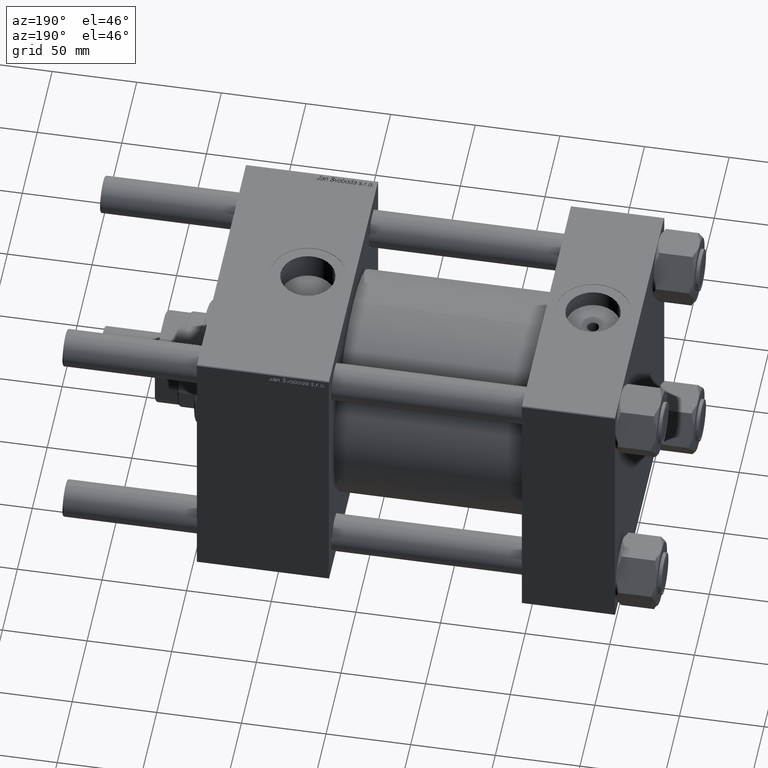
[diagram: clean part render]
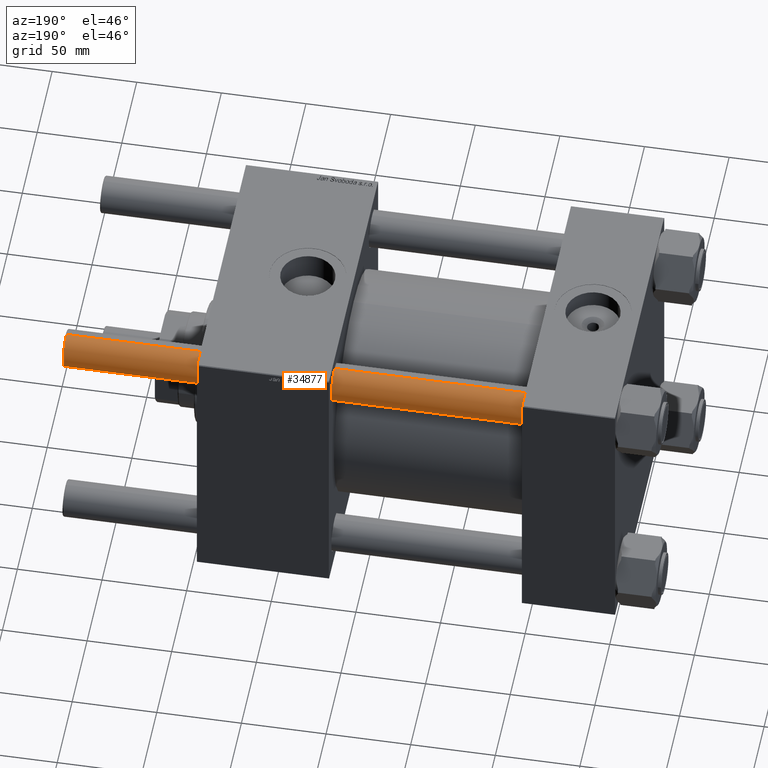
[diagram: same view with one face highlighted and labeled with its STEP entity id]
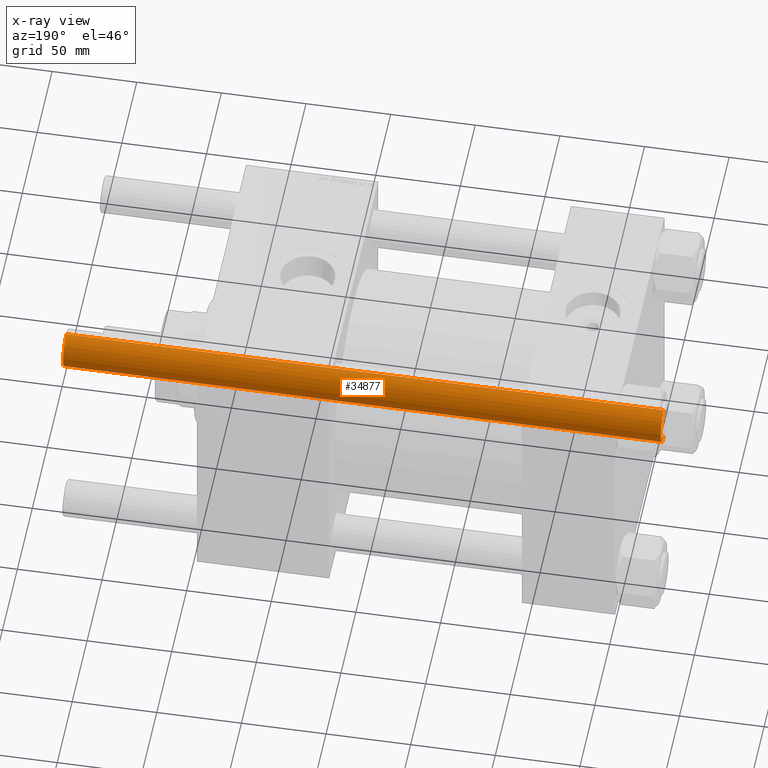
[diagram: x-ray of the same camera — body ghosted, the highlighted face saturated]
A machine part, auxiliary view. The second image highlights one B-rep face of the part: STEP entity #34877.
The next image is the same camera in x-ray: the body ghosted, the highlighted face saturated — about 0% of this face is hidden behind the body in this view.
In plain terms, the highlighted cylindrical surface (edge-blend (fillet) strip) has radius 11 mm, axis along (1, -0, -0).
Its self-contained STEP definition (entity closure, byte-faithful):
#1262 = EDGE_LOOP ( 'NONE', ( #8931, #30542, #47330, #18659 ) ) ;
#1440 = CARTESIAN_POINT ( 'NONE',  ( 11.00000000000000000, 1.347111479062088405E-15, 353.5000000000000568 ) ) ;
#1538 = EDGE_CURVE ( 'NONE', #35558, #39195, #49781, .T. ) ;
#3303 = CARTESIAN_POINT ( 'NONE',  ( -11.00000000000000000, 0.000000000000000000, 353.5000000000000568 ) ) ;
#3781 = EDGE_CURVE ( 'NONE', #35558, #21352, #54818, .T. ) ;
#6143 = CARTESIAN_POINT ( 'NONE',  ( 0.000000000000000000, 0.000000000000000000, 354.0000000000000000 ) ) ;
#6706 = CYLINDRICAL_SURFACE ( 'NONE', #44171, 11.00000000000000000 ) ;
#8931 = ORIENTED_EDGE ( 'NONE', *, *, #1538, .T. ) ;
#11189 = LINE ( 'NONE', #38071, #16212 ) ;
#11933 = DIRECTION ( 'NONE',  ( -0.000000000000000000, -0.000000000000000000, -1.000000000000000000 ) ) ;
#12867 = VECTOR ( 'NONE', #16888, 1000.000000000000000 ) ;
#13409 = DIRECTION ( 'NONE',  ( -0.000000000000000000, -0.000000000000000000, 1.000000000000000000 ) ) ;
#15177 = CARTESIAN_POINT ( 'NONE',  ( -11.00000000000000000, 0.000000000000000000, 354.0000000000000000 ) ) ;
#16212 = VECTOR ( 'NONE', #41559, 1000.000000000000000 ) ;
#16361 = CARTESIAN_POINT ( 'NONE',  ( 11.00000000000000000, 1.347111479062088405E-15, 0.5000000000001114664 ) ) ;
#16888 = DIRECTION ( 'NONE',  ( -0.000000000000000000, -0.000000000000000000, -1.000000000000000000 ) ) ;
#18659 = ORIENTED_EDGE ( 'NONE', *, *, #3781, .F. ) ;
#19357 = CARTESIAN_POINT ( 'NONE',  ( -11.00000000000000000, 0.000000000000000000, 0.5000000000001114664 ) ) ;
#21253 = CARTESIAN_POINT ( 'NONE',  ( 0.000000000000000000, 0.000000000000000000, 353.5000000000000568 ) ) ;
#21352 = VERTEX_POINT ( 'NONE', #19357 ) ;
#25436 = VERTEX_POINT ( 'NONE', #16361 ) ;
#26152 = CARTESIAN_POINT ( 'NONE',  ( 0.000000000000000000, 0.000000000000000000, 0.5000000000001114664 ) ) ;
#27375 = EDGE_CURVE ( 'NONE', #39195, #25436, #11189, .T. ) ;
#27532 = AXIS2_PLACEMENT_3D ( 'NONE', #26152, #13409, #32387 ) ;
#29576 = DIRECTION ( 'NONE',  ( -1.000000000000000000, 0.000000000000000000, 0.000000000000000000 ) ) ;
#30222 = DIRECTION ( 'NONE',  ( 1.000000000000000000, 0.000000000000000000, 0.000000000000000000 ) ) ;
#30542 = ORIENTED_EDGE ( 'NONE', *, *, #27375, .T. ) ;
#32387 = DIRECTION ( 'NONE',  ( 1.000000000000000000, 0.000000000000000000, 0.000000000000000000 ) ) ;
#34877 = ADVANCED_FACE ( 'NONE', ( #42298 ), #6706, .T. ) ;
#35558 = VERTEX_POINT ( 'NONE', #3303 ) ;
#36713 = CIRCLE ( 'NONE', #27532, 11.00000000000000000 ) ;
#38071 = CARTESIAN_POINT ( 'NONE',  ( 11.00000000000000000, 1.347111479062088405E-15, 354.0000000000000000 ) ) ;
#39195 = VERTEX_POINT ( 'NONE', #1440 ) ;
#41559 = DIRECTION ( 'NONE',  ( -0.000000000000000000, -0.000000000000000000, -1.000000000000000000 ) ) ;
#42298 = FACE_OUTER_BOUND ( 'NONE', #1262, .T. ) ;
#44171 = AXIS2_PLACEMENT_3D ( 'NONE', #6143, #11933, #29576 ) ;
#47330 = ORIENTED_EDGE ( 'NONE', *, *, #56115, .T. ) ;
#48878 = AXIS2_PLACEMENT_3D ( 'NONE', #21253, #52219, #30222 ) ;
#49781 = CIRCLE ( 'NONE', #48878, 11.00000000000000000 ) ;
#52219 = DIRECTION ( 'NONE',  ( 0.000000000000000000, 0.000000000000000000, -1.000000000000000000 ) ) ;
#54818 = LINE ( 'NONE', #15177, #12867 ) ;
#56115 = EDGE_CURVE ( 'NONE', #25436, #21352, #36713, .T. ) ;